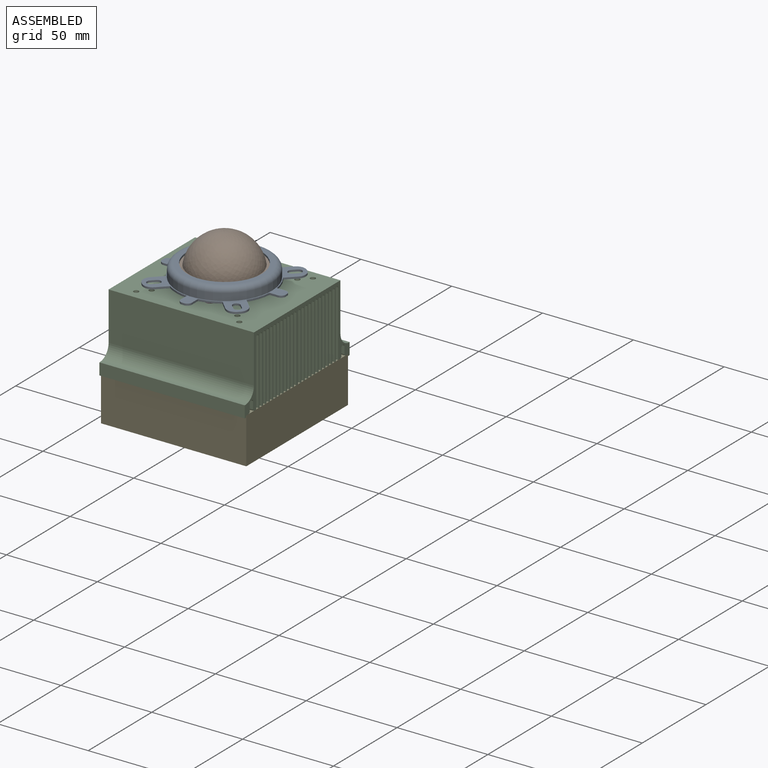
[diagram: assembled view]
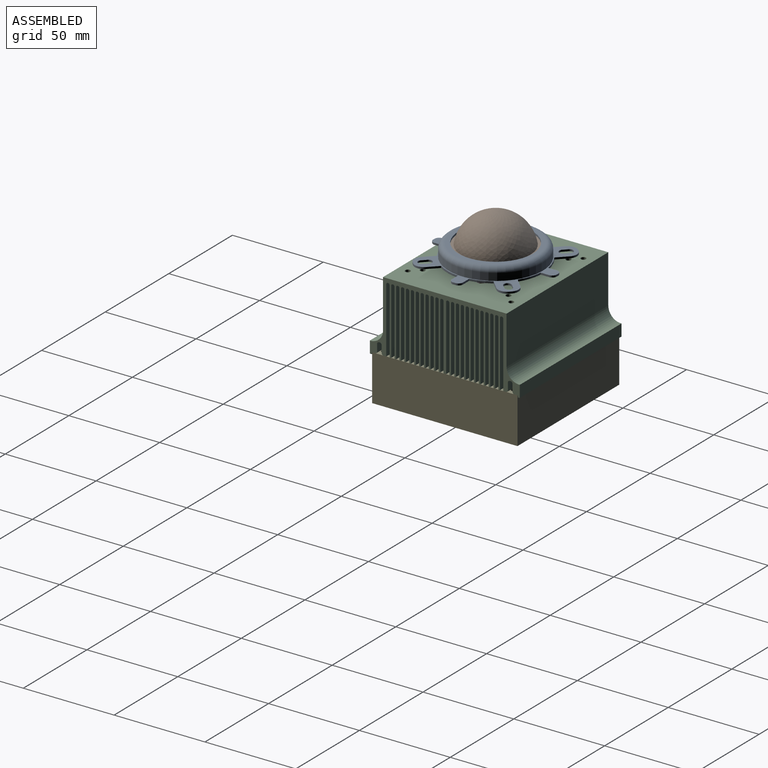
[diagram: assembled view, second angle]
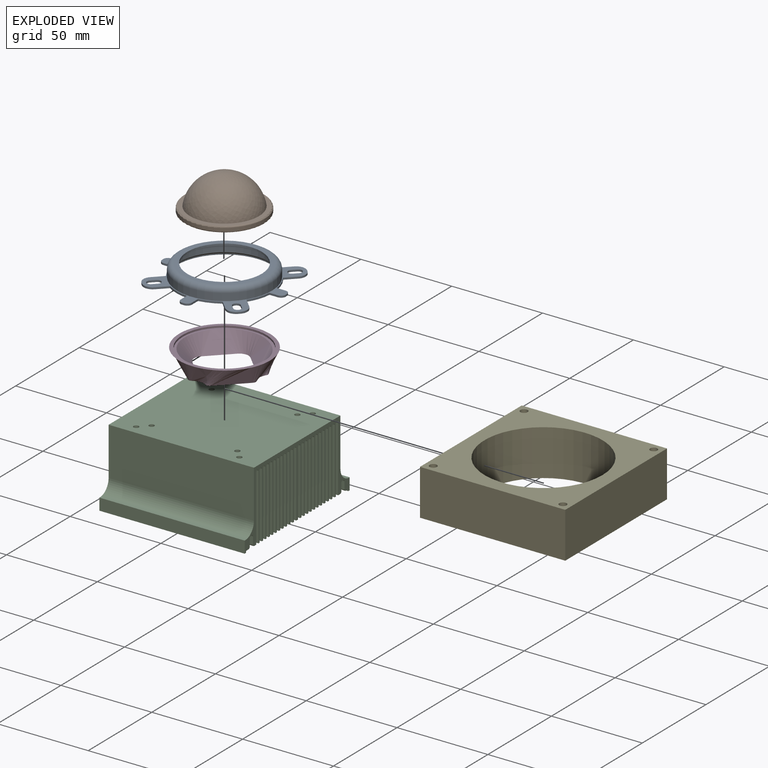
[diagram: exploded view]
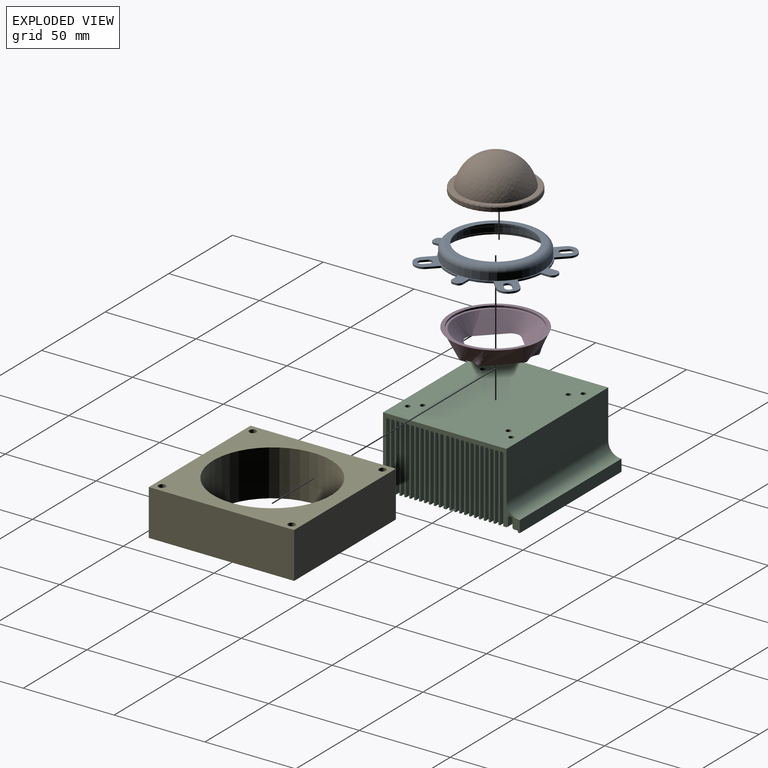
[diagram: exploded view, second angle]
ASSEMBLY  parts=5 mates=2
PART A: 75 faces, bbox 75.8x75.8x8 mm
  f0: cylinder r=26mm len=52mm, axis (0,0,-1), area 98mm2, adj f65,f74
  f1: cylinder r=2mm len=4mm, axis (0,0,-1), area 6.3mm2, adj f2,f64,f65,f66
  f2: plane 3x1mm, normal (1,0,0), area 3mm2, adj f1,f3,f65,f66
  f3: cylinder r=2mm len=4mm, axis (0,0,-1), area 6.3mm2, adj f2,f64,f65,f66
  f4: cylinder r=2mm len=4mm, axis (0,0,-1), area 6.3mm2, adj f5,f60,f65,f66
  f5: plane 3x1mm, normal (0,-1,0), area 3mm2, adj f4,f6,f65,f66
  f6: cylinder r=2mm len=4mm, axis (0,0,-1), area 6.3mm2, adj f5,f60,f65,f66
  f7: cylinder r=2mm len=4mm, axis (0,0,-1), area 6.3mm2, adj f8,f61,f65,f66
  f8: plane 3x1mm, normal (-1,0,0), area 3mm2, adj f7,f9,f65,f66
  f9: cylinder r=2mm len=4mm, axis (0,0,-1), area 6.3mm2, adj f8,f61,f65,f66
  f10: cylinder r=2mm len=4mm, axis (0,0,-1), area 6.3mm2, adj f11,f62,f65,f66
  f11: plane 3x1mm, normal (0,1,0), area 3mm2, adj f10,f12,f65,f66
  f12: cylinder r=2mm len=4mm, axis (0,0,-1), area 6.3mm2, adj f11,f62,f65,f66
  f13: plane 1x1mm, normal (-1,0,0), area 1mm2, adj f14,f63,f65,f66
  f14: cylinder r=5mm len=5mm, axis (0,0,-1), area 7.9mm2, adj f13,f15,f65,f66
  f15: plane 7x1mm, normal (0,-1,0), area 7mm2, adj f14,f16,f65,f66
  f16: cylinder r=26.5mm len=10.38mm, axis (0,0,-1), area 11.5mm2, adj f15,f17,f65,f66
  f17: plane 3.39x3.39mm, normal (-0.71,0.71,0), area 4.8mm2, adj f16,f18,f65,f66
  f18: cylinder r=2.5mm len=3.54mm, axis (0,0,-1), area 3.9mm2, adj f17,f19,f65,f66
  f19: plane 1x0.79mm, normal (-0.71,-0.71,0), area 1.1mm2, adj f18,f20,f65,f66
  f20: cylinder r=2.5mm len=3.54mm, axis (0,0,-1), area 3.9mm2, adj f19,f21,f65,f66
  f21: plane 3.28x3.28mm, normal (0.71,-0.71,0), area 4.6mm2, adj f20,f22,f65,f66
  f22: cylinder r=26.5mm len=11.51mm, axis (0,0,-1), area 12.9mm2, adj f21,f23,f65,f66
  f23: plane 7x1mm, normal (-1,0,0), area 7mm2, adj f22,f24,f65,f66
  f24: cylinder r=5mm len=5mm, axis (0,0,-1), area 7.9mm2, adj f23,f25,f65,f66
  f25: plane 1x1mm, normal (0,-1,0), area 1mm2, adj f24,f26,f65,f66
  f26: cylinder r=5mm len=5mm, axis (0,0,-1), area 7.9mm2, adj f25,f27,f65,f66
  f27: plane 7x1mm, normal (1,0,0), area 7mm2, adj f26,f28,f65,f66
  f28: cylinder r=26.5mm len=10.38mm, axis (0,0,-1), area 11.5mm2, adj f27,f29,f65,f66
  f29: plane 3.39x3.39mm, normal (-0.71,-0.71,0), area 4.8mm2, adj f28,f30,f65,f66
  f30: cylinder r=2.5mm len=3.54mm, axis (0,0,-1), area 3.9mm2, adj f29,f31,f65,f66
  f31: plane 1x0.79mm, normal (0.71,-0.71,0), area 1.1mm2, adj f30,f32,f65,f66
  f32: cylinder r=2.5mm len=3.54mm, axis (0,0,-1), area 3.9mm2, adj f31,f33,f65,f66
  f33: plane 3.28x3.28mm, normal (0.71,0.71,0), area 4.6mm2, adj f32,f34,f65,f66
  f34: cylinder r=26.5mm len=11.51mm, axis (0,0,-1), area 12.9mm2, adj f33,f35,f65,f66
  f35: plane 7x1mm, normal (0,-1,0), area 7mm2, adj f34,f36,f65,f66
  f36: cylinder r=5mm len=5mm, axis (0,0,-1), area 7.9mm2, adj f35,f37,f65,f66
  f37: plane 1x1mm, normal (1,0,0), area 1mm2, adj f36,f38,f65,f66
  f38: cylinder r=5mm len=5mm, axis (0,0,-1), area 7.9mm2, adj f37,f39,f65,f66
  f39: plane 7x1mm, normal (0,1,0), area 7mm2, adj f38,f40,f65,f66
  f40: cylinder r=26.5mm len=10.38mm, axis (0,0,-1), area 11.5mm2, adj f39,f41,f65,f66
  f41: plane 3.39x3.39mm, normal (0.71,-0.71,0), area 4.8mm2, adj f40,f42,f65,f66
  f42: cylinder r=2.5mm len=3.54mm, axis (0,0,-1), area 3.9mm2, adj f41,f43,f65,f66
  f43: plane 1x0.79mm, normal (0.71,0.71,0), area 1.1mm2, adj f42,f44,f65,f66
  f44: cylinder r=2.5mm len=3.54mm, axis (0,0,-1), area 3.9mm2, adj f43,f45,f65,f66
  f45: plane 3.28x3.28mm, normal (-0.71,0.71,0), area 4.6mm2, adj f44,f46,f65,f66
  f46: cylinder r=26.5mm len=11.51mm, axis (0,0,-1), area 12.9mm2, adj f45,f47,f65,f66
  f47: plane 7x1mm, normal (1,0,0), area 7mm2, adj f46,f48,f65,f66
  f48: cylinder r=5mm len=5mm, axis (0,0,-1), area 7.9mm2, adj f47,f49,f65,f66
  f49: plane 1x1mm, normal (0,1,0), area 1mm2, adj f48,f50,f65,f66
  f50: cylinder r=5mm len=5mm, axis (0,0,-1), area 7.9mm2, adj f49,f51,f65,f66
  f51: plane 7x1mm, normal (-1,0,0), area 7mm2, adj f50,f52,f65,f66
  f52: cylinder r=26.5mm len=10.38mm, axis (0,0,-1), area 11.5mm2, adj f51,f53,f65,f66
  f53: plane 3.39x3.39mm, normal (0.71,0.71,0), area 4.8mm2, adj f52,f54,f65,f66
  f54: cylinder r=2.5mm len=3.54mm, axis (0,0,-1), area 3.9mm2, adj f53,f55,f65,f66
  f55: plane 1x0.79mm, normal (-0.71,0.71,0), area 1.1mm2, adj f54,f56,f65,f66
  f56: cylinder r=2.5mm len=3.54mm, axis (0,0,-1), area 3.9mm2, adj f55,f57,f65,f66
  f57: plane 3.28x3.28mm, normal (-0.71,-0.71,0), area 4.6mm2, adj f56,f58,f65,f66
  f58: cylinder r=26.5mm len=11.51mm, axis (0,0,-1), area 12.9mm2, adj f57,f59,f65,f66
  f59: plane 7x1mm, normal (0,1,0), area 7mm2, adj f58,f63,f65,f66
  f60: plane 3x1mm, normal (0,1,0), area 3mm2, adj f4,f6,f65,f66
  f61: plane 3x1mm, normal (1,0,0), area 3mm2, adj f7,f9,f65,f66
  f62: plane 3x1mm, normal (0,-1,0), area 3mm2, adj f10,f12,f65,f66
  f63: cylinder r=5mm len=5mm, axis (0,0,-1), area 7.9mm2, adj f13,f59,f65,f66
  f64: plane 3x1mm, normal (-1,0,0), area 3mm2, adj f1,f3,f65,f66
  f65: plane 75.85x75.85mm, normal (0,0,1), area 615.1mm2, adj f0,f1,f2,f3,f4,f5,f6,f7
  f66: plane 75.85x75.85mm, normal (0,0,-1), area 615.1mm2, adj f1,f2,f3,f4,f5,f6,f7,f8
  f67: plane 44x44mm, normal (0,0,1), area 200.3mm2, adj f68,f72
  f68: cylinder r=20.5mm len=41mm, axis (0,0,1), area 128.8mm2, adj f67,f70
  f69: cylinder r=26mm len=52mm, axis (0,0,1), area 653.5mm2, adj f66,f73
  f70: plane 46x46mm, normal (0,0,-1), area 341.6mm2, adj f68,f73
  f71: cylinder r=25mm len=50mm, axis (0,0,-1), area 377mm2, adj f72,f74
  f72: torus R=22mm, axis (0,0,-1), area 707.9mm2, adj f67,f71
  f73: torus R=23mm, axis (0,0,-1), area 737.6mm2, adj f69,f70
  f74: cone r=25mm half-angle=45deg, axis (0,0,1), area 226.6mm2, adj f0,f71
PART B: 6 faces, bbox 47.6x47.6x19.5 mm
  f0: cylinder r=22mm len=44mm, axis (0,0,-1), area 246mm2, adj f4,f5
  f1: plane 42.6x42.6mm, normal (0,0,1), area 291.2mm2, adj f3,f5
  f2: plane 42.6x42.6mm, normal (0,0,-1), area 1425.3mm2, adj f4
  f3: revolved ~38x38mm, area 1970.7mm2, adj f1
  f4: torus R=21.3mm, axis (0,0,1), area 150.2mm2, adj f0,f2
  f5: torus R=21.3mm, axis (0,0,1), area 150.2mm2, adj f0,f1
PART C: 194 faces, bbox 80x82.5x40 mm
  f0: cylinder r=0.8mm len=80mm, axis (-1,0,0), area 100.5mm2, adj f1,f175,f176,f177
  f1: plane 80x36mm, normal (0,-1,0), area 2880mm2, adj f0,f2,f176,f177
  f2: plane 80x0.9mm, normal (0,0,-1), area 72mm2, adj f1,f3,f176,f177
  f3: plane 80x36mm, normal (0,1,0), area 2880mm2, adj f2,f4,f176,f177
  f4: cylinder r=0.8mm len=80mm, axis (-1,0,0), area 100.5mm2, adj f3,f5,f176,f177
  f5: plane 80x0.2mm, normal (0,0,-1), area 16mm2, adj f4,f6,f176,f177
  f6: cylinder r=0.8mm len=80mm, axis (-1,0,0), area 100.5mm2, adj f5,f7,f176,f177
  f7: plane 80x36mm, normal (0,-1,0), area 2880mm2, adj f6,f8,f176,f177
  f8: plane 80x1.4mm, normal (0,0,-1), area 112mm2, adj f7,f9,f176,f177
  f9: plane 80x36mm, normal (0,1,0), area 2880mm2, adj f8,f10,f176,f177
  f10: cylinder r=0.8mm len=80mm, axis (-1,0,0), area 100.5mm2, adj f9,f11,f176,f177
  f11: plane 80x0.2mm, normal (0,0,-1), area 16mm2, adj f10,f12,f176,f177
  f12: cylinder r=0.8mm len=80mm, axis (-1,0,0), area 100.5mm2, adj f11,f13,f176,f177
  f13: plane 80x36mm, normal (0,-1,0), area 2880mm2, adj f12,f14,f176,f177
  f14: plane 80x0.9mm, normal (0,0,-1), area 72mm2, adj f13,f15,f176,f177
  f15: plane 80x36mm, normal (0,1,0), area 2880mm2, adj f14,f16,f176,f177
  f16: cylinder r=0.8mm len=80mm, axis (-1,0,0), area 100.5mm2, adj f15,f17,f176,f177
  f17: plane 80x0.2mm, normal (0,0,-1), area 16mm2, adj f16,f18,f176,f177
  f18: cylinder r=0.8mm len=80mm, axis (-1,0,0), area 100.5mm2, adj f17,f19,f176,f177
  f19: plane 80x36mm, normal (0,-1,0), area 2880mm2, adj f18,f20,f176,f177
  f20: plane 80x0.9mm, normal (0,0,-1), area 72mm2, adj f19,f21,f176,f177
  f21: plane 80x36mm, normal (0,1,0), area 2880mm2, adj f20,f22,f176,f177
  f22: cylinder r=0.8mm len=80mm, axis (-1,0,0), area 100.5mm2, adj f21,f23,f176,f177
  f23: plane 80x0.2mm, normal (0,0,-1), area 16mm2, adj f22,f24,f176,f177
  f24: cylinder r=0.8mm len=80mm, axis (-1,0,0), area 100.5mm2, adj f23,f25,f176,f177
  f25: plane 80x36mm, normal (0,-1,0), area 2880mm2, adj f24,f26,f176,f177
  f26: plane 80x0.9mm, normal (0,0,-1), area 72mm2, adj f25,f27,f176,f177
  f27: plane 80x36mm, normal (0,1,0), area 2880mm2, adj f26,f28,f176,f177
  f28: cylinder r=0.8mm len=80mm, axis (-1,0,0), area 100.5mm2, adj f27,f29,f176,f177
  f29: plane 80x0.2mm, normal (0,0,-1), area 16mm2, adj f28,f30,f176,f177
  f30: cylinder r=0.8mm len=80mm, axis (-1,0,0), area 100.5mm2, adj f29,f31,f176,f177
  f31: plane 80x36mm, normal (0,-1,0), area 2880mm2, adj f30,f32,f176,f177
  f32: plane 80x0.9mm, normal (0,0,-1), area 72mm2, adj f31,f33,f176,f177
  f33: plane 80x36mm, normal (0,1,0), area 2880mm2, adj f32,f34,f176,f177
  f34: cylinder r=0.8mm len=80mm, axis (-1,0,0), area 100.5mm2, adj f33,f35,f176,f177
  f35: plane 80x0.2mm, normal (0,0,-1), area 16mm2, adj f34,f36,f176,f177
  f36: cylinder r=0.8mm len=80mm, axis (-1,0,0), area 100.5mm2, adj f35,f37,f176,f177
  f37: plane 80x36mm, normal (0,-1,0), area 2880mm2, adj f36,f38,f176,f177
  f38: plane 80x0.9mm, normal (0,0,-1), area 72mm2, adj f37,f39,f176,f177
  f39: plane 80x36mm, normal (0,1,0), area 2880mm2, adj f38,f40,f176,f177
  f40: cylinder r=0.8mm len=80mm, axis (-1,0,0), area 100.5mm2, adj f39,f41,f176,f177
  f41: plane 80x0.2mm, normal (0,0,-1), area 16mm2, adj f40,f42,f176,f177
  f42: cylinder r=0.8mm len=80mm, axis (-1,0,0), area 100.5mm2, adj f41,f43,f176,f177
  f43: plane 80x36mm, normal (0,-1,0), area 2880mm2, adj f42,f44,f176,f177
  f44: plane 80x0.9mm, normal (0,0,-1), area 72mm2, adj f43,f45,f176,f177
  f45: plane 80x36mm, normal (0,1,0), area 2880mm2, adj f44,f46,f176,f177
  f46: cylinder r=0.8mm len=80mm, axis (-1,0,0), area 100.5mm2, adj f45,f47,f176,f177
  f47: plane 80x0.2mm, normal (0,0,-1), area 16mm2, adj f46,f48,f176,f177
  f48: cylinder r=0.8mm len=80mm, axis (-1,0,0), area 100.5mm2, adj f47,f49,f176,f177
  f49: plane 80x36mm, normal (0,-1,0), area 2880mm2, adj f48,f50,f176,f177
  f50: plane 80x0.9mm, normal (0,0,-1), area 72mm2, adj f49,f51,f176,f177
  f51: plane 80x36mm, normal (0,1,0), area 2880mm2, adj f50,f52,f176,f177
  f52: cylinder r=0.8mm len=80mm, axis (-1,0,0), area 100.5mm2, adj f51,f53,f176,f177
  f53: plane 80x0.2mm, normal (0,0,-1), area 16mm2, adj f52,f54,f176,f177
  f54: cylinder r=0.8mm len=80mm, axis (-1,0,0), area 100.5mm2, adj f53,f55,f176,f177
  f55: plane 80x36mm, normal (0,-1,0), area 2880mm2, adj f54,f56,f176,f177
  f56: plane 80x0.9mm, normal (0,0,-1), area 72mm2, adj f55,f57,f176,f177
  f57: plane 80x36mm, normal (0,1,0), area 2880mm2, adj f56,f58,f176,f177
  f58: cylinder r=0.8mm len=80mm, axis (-1,0,0), area 100.5mm2, adj f57,f59,f176,f177
  f59: plane 80x0.2mm, normal (0,0,-1), area 16mm2, adj f58,f60,f176,f177
  f60: cylinder r=0.8mm len=80mm, axis (-1,0,0), area 100.5mm2, adj f59,f61,f176,f177
  f61: plane 80x36mm, normal (0,-1,0), area 2880mm2, adj f60,f62,f176,f177
  f62: plane 80x0.9mm, normal (0,0,-1), area 72mm2, adj f61,f63,f176,f177
  f63: plane 80x36mm, normal (0,1,0), area 2880mm2, adj f62,f64,f176,f177
  f64: cylinder r=0.8mm len=80mm, axis (-1,0,0), area 100.5mm2, adj f63,f65,f176,f177
  f65: plane 80x0.2mm, normal (0,0,-1), area 16mm2, adj f64,f66,f176,f177
  f66: cylinder r=0.8mm len=80mm, axis (-1,0,0), area 100.5mm2, adj f65,f67,f176,f177
  f67: plane 80x36mm, normal (0,-1,0), area 2880mm2, adj f66,f68,f176,f177
  f68: plane 80x0.9mm, normal (0,0,-1), area 72mm2, adj f67,f69,f176,f177
  f69: plane 80x36mm, normal (0,1,0), area 2880mm2, adj f68,f70,f176,f177
  f70: cylinder r=0.8mm len=80mm, axis (-1,0,0), area 100.5mm2, adj f69,f71,f176,f177
  f71: plane 80x0.2mm, normal (0,0,-1), area 16mm2, adj f70,f72,f176,f177
  f72: cylinder r=0.8mm len=80mm, axis (-1,0,0), area 100.5mm2, adj f71,f73,f176,f177
  f73: plane 80x36mm, normal (0,-1,0), area 2880mm2, adj f72,f74,f176,f177
  f74: plane 80x0.9mm, normal (0,0,-1), area 72mm2, adj f73,f75,f176,f177
  f75: plane 80x36mm, normal (0,1,0), area 2880mm2, adj f74,f76,f176,f177
  f76: cylinder r=0.8mm len=80mm, axis (-1,0,0), area 100.5mm2, adj f75,f77,f176,f177
  f77: plane 80x0.2mm, normal (0,0,-1), area 16mm2, adj f76,f78,f176,f177
  f78: cylinder r=0.8mm len=80mm, axis (-1,0,0), area 100.5mm2, adj f77,f79,f176,f177
  f79: plane 80x36mm, normal (0,-1,0), area 2880mm2, adj f78,f80,f176,f177
  f80: plane 80x1.55mm, normal (0,0,-1), area 124mm2, adj f79,f81,f176,f177
  f81: cylinder r=1mm len=80mm, axis (-1,0,0), area 125.7mm2, adj f80,f82,f176,f177
  f82: plane 80x4mm, normal (0,1,0), area 320mm2, adj f81,f83,f176,f177
  f83: cylinder r=1mm len=80mm, axis (-1,0,0), area 125.7mm2, adj f82,f84,f176,f177
  f84: plane 80x0.5mm, normal (0,0,-1), area 40mm2, adj f83,f85,f176,f177
  f85: cylinder r=1mm len=80mm, axis (-1,0,0), area 125.7mm2, adj f84,f86,f176,f177
  f86: plane 80x4mm, normal (0,-1,0), area 320mm2, adj f85,f87,f176,f177
  f87: cylinder r=1mm len=80mm, axis (-1,0,0), area 125.7mm2, adj f86,f88,f176,f177
  f88: plane 80x1.5mm, normal (0,0,-1), area 120mm2, adj f87,f89,f176,f177
  f89: cylinder r=0.5mm len=80mm, axis (-1,0,0), area 62.8mm2, adj f88,f90,f176,f177
  f90: plane 80x0.5mm, normal (0,-1,0), area 40mm2, adj f89,f91,f176,f177
  f91: plane 80x1mm, normal (0,0,-1), area 80mm2, adj f90,f92,f176,f177
  f92: plane 80x6.5mm, normal (0,1,0), area 520mm2, adj f91,f93,f176,f177
  f93: plane 80x0.25mm, normal (0,0,1), area 20mm2, adj f92,f94,f176,f177
  f94: cylinder r=7mm len=80mm, axis (-1,0,0), area 879.6mm2, adj f93,f95,f176,f177
  f95: plane 80x26.5mm, normal (0,1,0), area 2120mm2, adj f94,f96,f176,f177
  f96: plane 80x68mm, normal (0,0,1), area 5390.7mm2, adj f95,f97,f176,f177,f178,f180,f182,f184
  f97: plane 80x26.5mm, normal (0,-1,0), area 2120mm2, adj f96,f98,f176,f177
  f98: cylinder r=7mm len=80mm, axis (-1,0,0), area 879.6mm2, adj f97,f99,f176,f177
  f99: plane 80x0.25mm, normal (0,0,1), area 20mm2, adj f98,f100,f176,f177
  f100: plane 80x6.5mm, normal (0,-1,0), area 520mm2, adj f99,f101,f176,f177
  f101: plane 80x1mm, normal (0,0,-1), area 80mm2, adj f100,f102,f176,f177
  f102: plane 80x0.5mm, normal (0,1,0), area 40mm2, adj f101,f103,f176,f177
  f103: cylinder r=0.5mm len=80mm, axis (-1,0,0), area 62.8mm2, adj f102,f104,f176,f177
  f104: plane 80x1.5mm, normal (0,0,-1), area 120mm2, adj f103,f105,f176,f177
  f105: cylinder r=1mm len=80mm, axis (-1,0,0), area 125.7mm2, adj f104,f106,f176,f177
  f106: plane 80x4mm, normal (0,1,0), area 320mm2, adj f105,f107,f176,f177
  f107: cylinder r=1mm len=80mm, axis (-1,0,0), area 125.7mm2, adj f106,f108,f176,f177
  f108: plane 80x0.5mm, normal (0,0,-1), area 40mm2, adj f107,f109,f176,f177
  f109: cylinder r=1mm len=80mm, axis (-1,0,0), area 125.7mm2, adj f108,f110,f176,f177
  f110: plane 80x4mm, normal (0,-1,0), area 320mm2, adj f109,f111,f176,f177
  f111: cylinder r=1mm len=80mm, axis (-1,0,0), area 125.7mm2, adj f110,f112,f176,f177
  f112: plane 80x1.55mm, normal (0,0,-1), area 124mm2, adj f111,f113,f176,f177
  f113: plane 80x36mm, normal (0,1,0), area 2880mm2, adj f112,f114,f176,f177
  f114: cylinder r=0.8mm len=80mm, axis (-1,0,0), area 100.5mm2, adj f113,f115,f176,f177
  f115: plane 80x0.2mm, normal (0,0,-1), area 16mm2, adj f114,f116,f176,f177
  f116: cylinder r=0.8mm len=80mm, axis (-1,0,0), area 100.5mm2, adj f115,f117,f176,f177
  f117: plane 80x36mm, normal (0,-1,0), area 2880mm2, adj f116,f118,f176,f177
  f118: plane 80x0.9mm, normal (0,0,-1), area 72mm2, adj f117,f119,f176,f177
  f119: plane 80x36mm, normal (0,1,0), area 2880mm2, adj f118,f120,f176,f177
  f120: cylinder r=0.8mm len=80mm, axis (-1,0,0), area 100.5mm2, adj f119,f121,f176,f177
  f121: plane 80x0.2mm, normal (0,0,-1), area 16mm2, adj f120,f122,f176,f177
  f122: cylinder r=0.8mm len=80mm, axis (-1,0,0), area 100.5mm2, adj f121,f123,f176,f177
  f123: plane 80x36mm, normal (0,-1,0), area 2880mm2, adj f122,f124,f176,f177
  f124: plane 80x0.9mm, normal (0,0,-1), area 72mm2, adj f123,f125,f176,f177
  f125: plane 80x36mm, normal (0,1,0), area 2880mm2, adj f124,f126,f176,f177
  f126: cylinder r=0.8mm len=80mm, axis (-1,0,0), area 100.5mm2, adj f125,f127,f176,f177
  f127: plane 80x0.2mm, normal (0,0,-1), area 16mm2, adj f126,f128,f176,f177
  f128: cylinder r=0.8mm len=80mm, axis (-1,0,0), area 100.5mm2, adj f127,f129,f176,f177
  f129: plane 80x36mm, normal (0,-1,0), area 2880mm2, adj f128,f130,f176,f177
  f130: plane 80x0.9mm, normal (0,0,-1), area 72mm2, adj f129,f131,f176,f177
  f131: plane 80x36mm, normal (0,1,0), area 2880mm2, adj f130,f132,f176,f177
  f132: cylinder r=0.8mm len=80mm, axis (-1,0,0), area 100.5mm2, adj f131,f133,f176,f177
  f133: plane 80x0.2mm, normal (0,0,-1), area 16mm2, adj f132,f134,f176,f177
  f134: cylinder r=0.8mm len=80mm, axis (-1,0,0), area 100.5mm2, adj f133,f135,f176,f177
  f135: plane 80x36mm, normal (0,-1,0), area 2880mm2, adj f134,f136,f176,f177
  f136: plane 80x0.9mm, normal (0,0,-1), area 72mm2, adj f135,f137,f176,f177
  f137: plane 80x36mm, normal (0,1,0), area 2880mm2, adj f136,f138,f176,f177
  f138: cylinder r=0.8mm len=80mm, axis (-1,0,0), area 100.5mm2, adj f137,f139,f176,f177
  f139: plane 80x0.2mm, normal (0,0,-1), area 16mm2, adj f138,f140,f176,f177
  f140: cylinder r=0.8mm len=80mm, axis (-1,0,0), area 100.5mm2, adj f139,f141,f176,f177
  f141: plane 80x36mm, normal (0,-1,0), area 2880mm2, adj f140,f142,f176,f177
  f142: plane 80x0.9mm, normal (0,0,-1), area 72mm2, adj f141,f143,f176,f177
  f143: plane 80x36mm, normal (0,1,0), area 2880mm2, adj f142,f144,f176,f177
  f144: cylinder r=0.8mm len=80mm, axis (-1,0,0), area 100.5mm2, adj f143,f145,f176,f177
  f145: plane 80x0.2mm, normal (0,0,-1), area 16mm2, adj f144,f146,f176,f177
  f146: cylinder r=0.8mm len=80mm, axis (-1,0,0), area 100.5mm2, adj f145,f147,f176,f177
  f147: plane 80x36mm, normal (0,-1,0), area 2880mm2, adj f146,f148,f176,f177
  f148: plane 80x0.9mm, normal (0,0,-1), area 72mm2, adj f147,f149,f176,f177
  f149: plane 80x36mm, normal (0,1,0), area 2880mm2, adj f148,f150,f176,f177
  f150: cylinder r=0.8mm len=80mm, axis (-1,0,0), area 100.5mm2, adj f149,f151,f176,f177
  f151: plane 80x0.2mm, normal (0,0,-1), area 16mm2, adj f150,f152,f176,f177
  f152: cylinder r=0.8mm len=80mm, axis (-1,0,0), area 100.5mm2, adj f151,f153,f176,f177
  f153: plane 80x36mm, normal (0,-1,0), area 2880mm2, adj f152,f154,f176,f177
  f154: plane 80x0.9mm, normal (0,0,-1), area 72mm2, adj f153,f155,f176,f177
  f155: plane 80x36mm, normal (0,1,0), area 2880mm2, adj f154,f156,f176,f177
  f156: cylinder r=0.8mm len=80mm, axis (-1,0,0), area 100.5mm2, adj f155,f157,f176,f177
  f157: plane 80x0.2mm, normal (0,0,-1), area 16mm2, adj f156,f158,f176,f177
  f158: cylinder r=0.8mm len=80mm, axis (-1,0,0), area 100.5mm2, adj f157,f159,f176,f177
  f159: plane 80x36mm, normal (0,-1,0), area 2880mm2, adj f158,f160,f176,f177
  f160: plane 80x0.9mm, normal (0,0,-1), area 72mm2, adj f159,f161,f176,f177
  f161: plane 80x36mm, normal (0,1,0), area 2880mm2, adj f160,f162,f176,f177
  f162: cylinder r=0.8mm len=80mm, axis (-1,0,0), area 100.5mm2, adj f161,f163,f176,f177
  f163: plane 80x0.2mm, normal (0,0,-1), area 16mm2, adj f162,f164,f176,f177
  f164: cylinder r=0.8mm len=80mm, axis (-1,0,0), area 100.5mm2, adj f163,f165,f176,f177
  f165: plane 80x36mm, normal (0,-1,0), area 2880mm2, adj f164,f166,f176,f177
  f166: plane 80x0.9mm, normal (0,0,-1), area 72mm2, adj f165,f167,f176,f177
  f167: plane 80x36mm, normal (0,1,0), area 2880mm2, adj f166,f168,f176,f177
  f168: cylinder r=0.8mm len=80mm, axis (-1,0,0), area 100.5mm2, adj f167,f169,f176,f177
  f169: plane 80x0.2mm, normal (0,0,-1), area 16mm2, adj f168,f170,f176,f177
  f170: cylinder r=0.8mm len=80mm, axis (-1,0,0), area 100.5mm2, adj f169,f171,f176,f177
  f171: plane 80x36mm, normal (0,-1,0), area 2880mm2, adj f170,f172,f176,f177
  f172: plane 80x0.9mm, normal (0,0,-1), area 72mm2, adj f171,f173,f176,f177
  f173: plane 80x36mm, normal (0,1,0), area 2880mm2, adj f172,f174,f176,f177
  f174: cylinder r=0.8mm len=80mm, axis (-1,0,0), area 100.5mm2, adj f173,f175,f176,f177
  f175: plane 80x0.2mm, normal (0,0,-1), area 16mm2, adj f0,f174,f176,f177
  f176: plane 82.5x40mm, normal (1,0,0), area 1141.7mm2, adj f0,f1,f2,f3,f4,f5,f6,f7
  f177: plane 82.5x40mm, normal (-1,0,0), area 1141.7mm2, adj f0,f1,f2,f3,f4,f5,f6,f7
  f178: cylinder r=1.4mm len=2.8mm, axis (0,0,1), area 17.6mm2, adj f96,f179
  f179: plane 2.8x2.8mm, normal (0,0,1), area 6.2mm2, adj f178
  f180: cylinder r=1.4mm len=2.8mm, axis (0,0,1), area 17.6mm2, adj f96,f181
  f181: plane 2.8x2.8mm, normal (0,0,1), area 6.2mm2, adj f180
  f182: cylinder r=1.4mm len=2.8mm, axis (0,0,1), area 17.6mm2, adj f96,f183
  f183: plane 2.8x2.8mm, normal (0,0,1), area 6.2mm2, adj f182
  f184: cylinder r=1.4mm len=2.8mm, axis (0,0,1), area 17.6mm2, adj f96,f185
  f185: plane 2.8x2.8mm, normal (0,0,1), area 6.2mm2, adj f184
  f186: cylinder r=1.4mm len=2.8mm, axis (0,0,1), area 17.6mm2, adj f96,f187
  f187: plane 2.8x2.8mm, normal (0,0,1), area 6.2mm2, adj f186
  f188: cylinder r=1.4mm len=2.8mm, axis (0,0,1), area 17.6mm2, adj f96,f189
  f189: plane 2.8x2.8mm, normal (0,0,1), area 6.2mm2, adj f188
  f190: cylinder r=1.4mm len=2.8mm, axis (0,0,1), area 17.6mm2, adj f96,f191
  f191: plane 2.8x2.8mm, normal (0,0,1), area 6.2mm2, adj f190
  f192: cylinder r=1.4mm len=2.8mm, axis (0,0,1), area 17.6mm2, adj f96,f193
  f193: plane 2.8x2.8mm, normal (0,0,1), area 6.2mm2, adj f192
PART D: 6 faces, bbox 51.9x51.9x11.8 mm
  f0: bspline ~43.15x43.13mm, area 1324.3mm2, adj f1,f4
  f1: plane 38.8x38.8mm, normal (0,0,-1), area 524.2mm2, adj f0,f3
  f2: plane 51.23x51.23mm, normal (0,0,1), area 301.5mm2, adj f3,f5
  f3: bspline ~49.94x49.91mm, area 1612.6mm2, adj f1,f2
  f4: plane 46x46mm, normal (0,0,1), area 175.3mm2, adj f0,f5
  f5: cylinder r=23mm len=46mm, axis (0,0,1), area 144.5mm2, adj f2,f4
PART E: 11 faces, bbox 80x80x25.3 mm
  f0: plane 80x25.3mm, normal (0,1,0), area 2024mm2, adj f1,f8,f9,f10
  f1: plane 80x25.3mm, normal (-1,0,0), area 2024mm2, adj f0,f2,f9,f10
  f2: plane 80x25.3mm, normal (0,-1,0), area 2024mm2, adj f1,f8,f9,f10
  f3: cylinder r=2mm len=25.3mm, axis (0,0,-1), area 317.9mm2, adj f9,f10
  f4: cylinder r=2mm len=25.3mm, axis (0,0,-1), area 317.9mm2, adj f9,f10
  f5: cylinder r=2mm len=25.3mm, axis (0,0,-1), area 317.9mm2, adj f9,f10
  f6: cylinder r=2mm len=25.3mm, axis (0,0,-1), area 317.9mm2, adj f9,f10
  f7: cylinder r=32.5mm len=65mm, axis (0,0,-1), area 5166.3mm2, adj f9,f10
  f8: plane 80x25.3mm, normal (1,0,0), area 2024mm2, adj f0,f2,f9,f10
  f9: plane 80x80mm, normal (0,0,1), area 3031.4mm2, adj f0,f1,f2,f3,f4,f5,f6,f7
  f10: plane 80x80mm, normal (0,0,-1), area 3031.4mm2, adj f0,f1,f2,f3,f4,f5,f6,f7
PLACE A rot(axis=(-0.92,-0.38,0),180deg) t=(0,0,68.3)mm fixed
PLACE B rot(axis=(0,0,-1),45deg) t=(0,0,71.12)mm
PLACE C at identity fixed
PLACE D rot(axis=(0,0,1),45deg) t=(0,0,-10)mm
PLACE E at identity fixed
MATE fastened B.f0 <-> A.f0  axis (0,0,1) through (0,0,74.3)mm
MATE fastened D.f5 <-> A.f0  axis (0,0,1) through (0,0,74.3)mm
